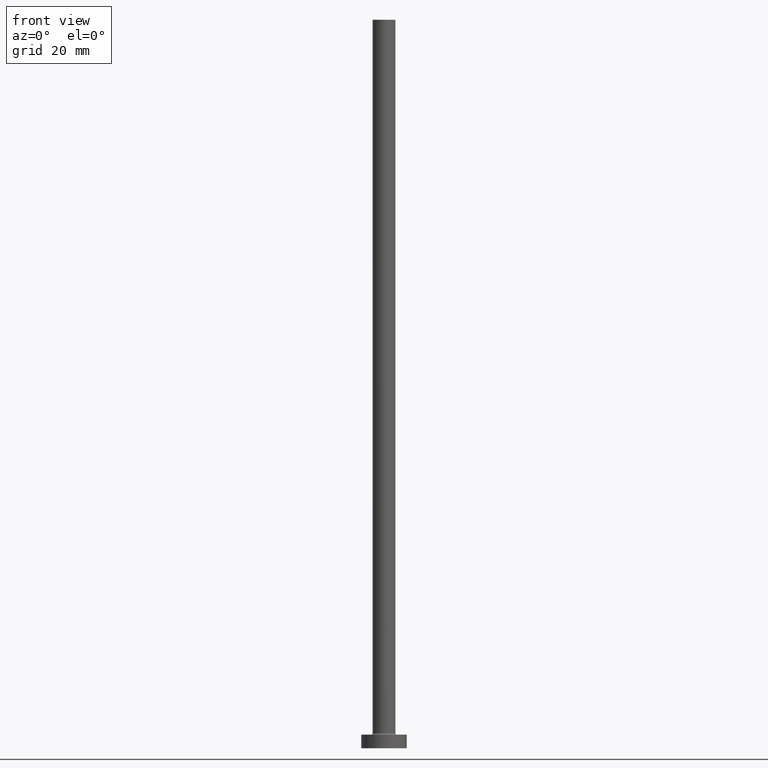
[diagram: clean part render]
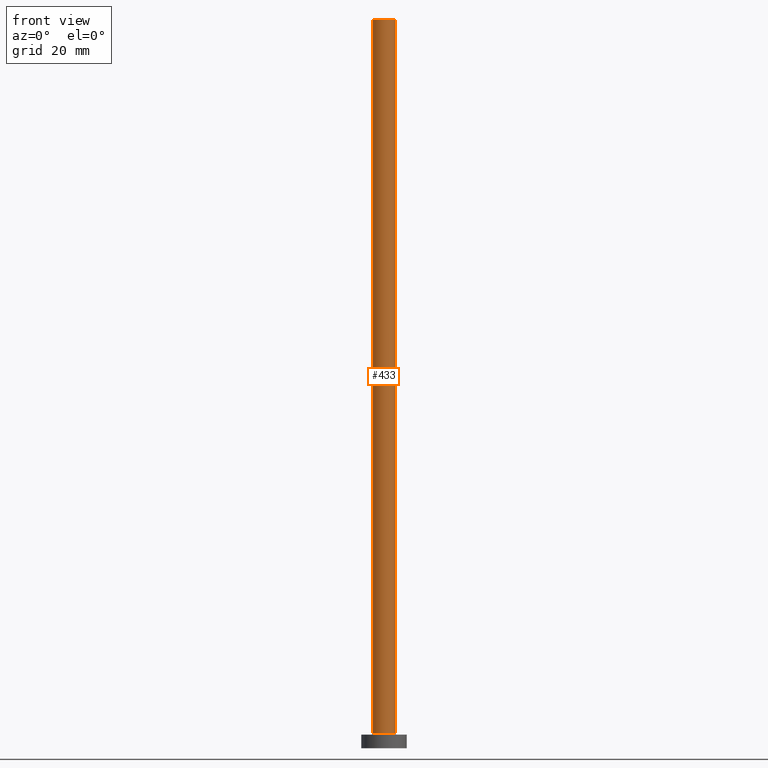
[diagram: same view with one face highlighted and labeled with its STEP entity id]
A machine part, front view. The second image highlights one B-rep face of the part: STEP entity #433.
In plain terms, the highlighted cylindrical surface (edge-blend (fillet) strip) has radius 2.5 mm, axis along (-0, -0, -1).
Its self-contained STEP definition (entity closure, byte-faithful):
#6 = CARTESIAN_POINT ( 'NONE',  ( 2.500000000000000000, 3.061616997868383141E-16, 160.0000000000000000 ) ) ;
#18 = CARTESIAN_POINT ( 'NONE',  ( 0.000000000000000000, 0.000000000000000000, 160.0000000000000000 ) ) ;
#20 = VERTEX_POINT ( 'NONE', #376 ) ;
#42 = EDGE_CURVE ( 'NONE', #187, #128, #160, .T. ) ;
#46 = ORIENTED_EDGE ( 'NONE', *, *, #227, .F. ) ;
#53 = CYLINDRICAL_SURFACE ( 'NONE', #91, 2.500000000000000000 ) ;
#54 = DIRECTION ( 'NONE',  ( -1.000000000000000000, 0.000000000000000000, 0.000000000000000000 ) ) ;
#77 = EDGE_CURVE ( 'NONE', #93, #128, #362, .T. ) ;
#79 = VECTOR ( 'NONE', #155, 1000.000000000000000 ) ;
#91 = AXIS2_PLACEMENT_3D ( 'NONE', #18, #158, #54 ) ;
#92 = FACE_OUTER_BOUND ( 'NONE', #327, .T. ) ;
#93 = VERTEX_POINT ( 'NONE', #286 ) ;
#97 = DIRECTION ( 'NONE',  ( -0.000000000000000000, -0.000000000000000000, -1.000000000000000000 ) ) ;
#110 = CIRCLE ( 'NONE', #299, 2.500000000000000000 ) ;
#128 = VERTEX_POINT ( 'NONE', #276 ) ;
#142 = LINE ( 'NONE', #344, #79 ) ;
#155 = DIRECTION ( 'NONE',  ( -0.000000000000000000, -0.000000000000000000, -1.000000000000000000 ) ) ;
#158 = DIRECTION ( 'NONE',  ( -0.000000000000000000, -0.000000000000000000, -1.000000000000000000 ) ) ;
#160 = LINE ( 'NONE', #305, #223 ) ;
#186 = DIRECTION ( 'NONE',  ( 1.000000000000000000, 0.000000000000000000, 0.000000000000000000 ) ) ;
#187 = VERTEX_POINT ( 'NONE', #6 ) ;
#202 = DIRECTION ( 'NONE',  ( 1.000000000000000000, 0.000000000000000000, 0.000000000000000000 ) ) ;
#223 = VECTOR ( 'NONE', #97, 1000.000000000000000 ) ;
#227 = EDGE_CURVE ( 'NONE', #20, #187, #110, .T. ) ;
#256 = AXIS2_PLACEMENT_3D ( 'NONE', #342, #349, #202 ) ;
#276 = CARTESIAN_POINT ( 'NONE',  ( 2.500000000000000000, 3.061616997868383141E-16, 3.299999999999997158 ) ) ;
#286 = CARTESIAN_POINT ( 'NONE',  ( -2.500000000000000000, 0.000000000000000000, 3.299999999999997158 ) ) ;
#291 = DIRECTION ( 'NONE',  ( 0.000000000000000000, 0.000000000000000000, 1.000000000000000000 ) ) ;
#299 = AXIS2_PLACEMENT_3D ( 'NONE', #363, #291, #186 ) ;
#305 = CARTESIAN_POINT ( 'NONE',  ( 2.500000000000000000, 3.061616997868383141E-16, 160.0000000000000000 ) ) ;
#327 = EDGE_LOOP ( 'NONE', ( #354, #46, #369, #375 ) ) ;
#331 = EDGE_CURVE ( 'NONE', #20, #93, #142, .T. ) ;
#342 = CARTESIAN_POINT ( 'NONE',  ( 0.000000000000000000, 0.000000000000000000, 3.299999999999997158 ) ) ;
#344 = CARTESIAN_POINT ( 'NONE',  ( -2.500000000000000000, 0.000000000000000000, 160.0000000000000000 ) ) ;
#349 = DIRECTION ( 'NONE',  ( 0.000000000000000000, 0.000000000000000000, 1.000000000000000000 ) ) ;
#354 = ORIENTED_EDGE ( 'NONE', *, *, #42, .F. ) ;
#362 = CIRCLE ( 'NONE', #256, 2.500000000000000000 ) ;
#363 = CARTESIAN_POINT ( 'NONE',  ( 0.000000000000000000, 0.000000000000000000, 160.0000000000000000 ) ) ;
#369 = ORIENTED_EDGE ( 'NONE', *, *, #331, .T. ) ;
#375 = ORIENTED_EDGE ( 'NONE', *, *, #77, .T. ) ;
#376 = CARTESIAN_POINT ( 'NONE',  ( -2.500000000000000000, 0.000000000000000000, 160.0000000000000000 ) ) ;
#433 = ADVANCED_FACE ( 'NONE', ( #92 ), #53, .T. ) ;